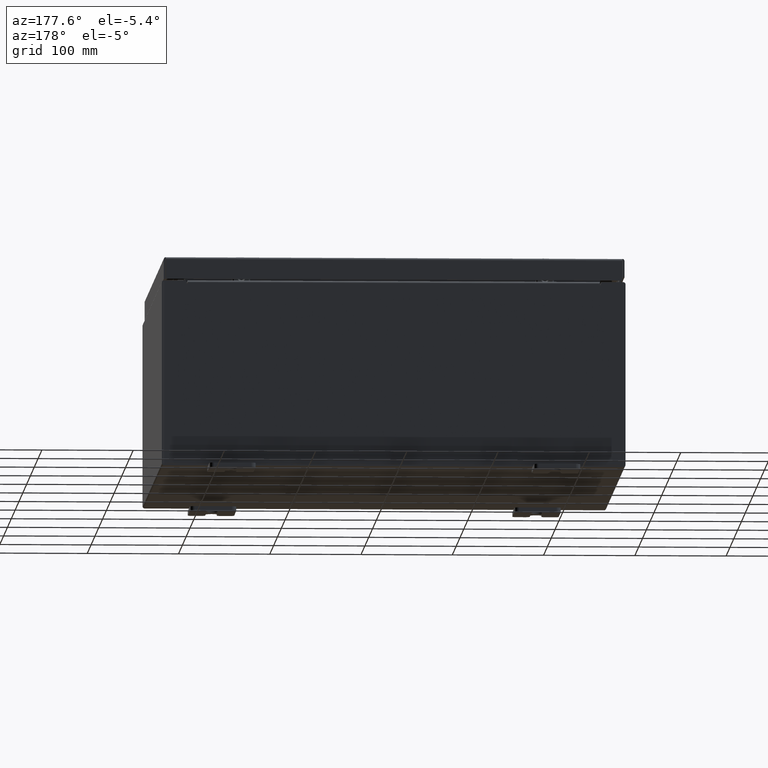
[diagram: clean part render]
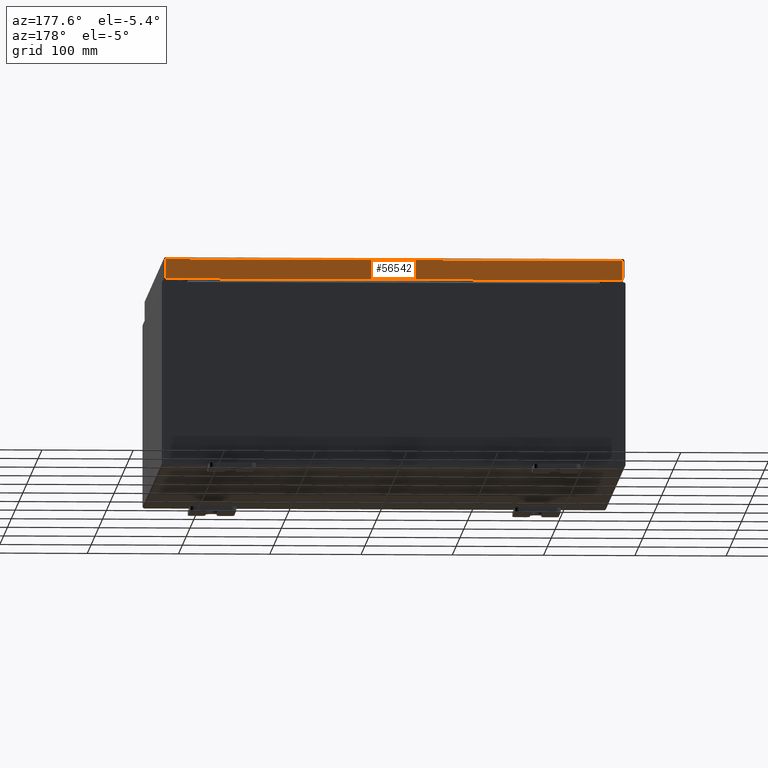
[diagram: same view with one face highlighted and labeled with its STEP entity id]
A machine part, auxiliary view. The second image highlights one B-rep face of the part: STEP entity #56542.
In plain terms, the highlighted planar face has unit normal (0, -1, -0).
Its self-contained STEP definition (entity closure, byte-faithful):
#910 = ORIENTED_EDGE ( 'NONE', *, *, #23583, .F. ) ;
#1100 = CARTESIAN_POINT ( 'NONE',  ( -9.937500000000000000, 9.937500000000000000, -0.9377000000000023100 ) ) ;
#1682 = ORIENTED_EDGE ( 'NONE', *, *, #14148, .F. ) ;
#3177 = ORIENTED_EDGE ( 'NONE', *, *, #43242, .T. ) ;
#3582 = DIRECTION ( 'NONE',  ( -1.000000000000000000, -3.132763603081809300E-031, -7.843572268217971900E-046 ) ) ;
#5168 = EDGE_CURVE ( 'NONE', #7670, #37022, #14948, .T. ) ;
#6096 = EDGE_LOOP ( 'NONE', ( #51207, #3177, #910, #1682 ) ) ;
#7670 = VERTEX_POINT ( 'NONE', #21086 ) ;
#8414 = CARTESIAN_POINT ( 'NONE',  ( 9.848657864376265900, 9.937500000000000000, -0.9376999999999997600 ) ) ;
#8521 = CARTESIAN_POINT ( 'NONE',  ( -9.937500000000000000, 9.937499999999998200, -0.08770000000000008300 ) ) ;
#11595 = DIRECTION ( 'NONE',  ( 1.000000000000000000, -4.379057701015054300E-047, 1.237063242414006500E-016 ) ) ;
#11624 = DIRECTION ( 'NONE',  ( 3.132763603081808900E-031, -1.000000000000000000, -2.532419924601859000E-015 ) ) ;
#14148 = EDGE_CURVE ( 'NONE', #37022, #37498, #55283, .T. ) ;
#14255 = CARTESIAN_POINT ( 'NONE',  ( -9.848657864376269400, 9.937499999999998200, -0.07469999999999980800 ) ) ;
#14948 = LINE ( 'NONE', #8521, #26449 ) ;
#15594 = CARTESIAN_POINT ( 'NONE',  ( -3.113183830562546900E-030, 9.937499999999998200, 2.542673665674255300E-014 ) ) ;
#16243 = FACE_OUTER_BOUND ( 'NONE', #6096, .T. ) ;
#17093 = CARTESIAN_POINT ( 'NONE',  ( -9.848657864376269400, 9.937500000000000000, -0.9377000000000023100 ) ) ;
#19253 = CARTESIAN_POINT ( 'NONE',  ( 9.848657864376265900, 9.937499999999998200, 2.542673665674255300E-014 ) ) ;
#19383 = DIRECTION ( 'NONE',  ( -0.0000000000000000000, 2.532419924601859000E-015, -1.000000000000000000 ) ) ;
#21086 = CARTESIAN_POINT ( 'NONE',  ( 9.848657864376265900, 9.937499999999998200, -0.08770000000000008300 ) ) ;
#23583 = EDGE_CURVE ( 'NONE', #37498, #63161, #41059, .T. ) ;
#25075 = VECTOR ( 'NONE', #48634, 39.37007874015748100 ) ;
#25441 = PLANE ( 'NONE',  #59265 ) ;
#26449 = VECTOR ( 'NONE', #3582, 39.37007874015748100 ) ;
#27700 = VECTOR ( 'NONE', #19383, 39.37007874015748100 ) ;
#33524 = LINE ( 'NONE', #19253, #25075 ) ;
#37022 = VERTEX_POINT ( 'NONE', #53573 ) ;
#37498 = VERTEX_POINT ( 'NONE', #17093 ) ;
#41059 = LINE ( 'NONE', #1100, #51013 ) ;
#43242 = EDGE_CURVE ( 'NONE', #7670, #63161, #33524, .T. ) ;
#45914 = DIRECTION ( 'NONE',  ( 0.0000000000000000000, 2.532419924601859000E-015, -1.000000000000000000 ) ) ;
#48634 = DIRECTION ( 'NONE',  ( 0.0000000000000000000, 2.532419924601859000E-015, -1.000000000000000000 ) ) ;
#51013 = VECTOR ( 'NONE', #11595, 39.37007874015748100 ) ;
#51207 = ORIENTED_EDGE ( 'NONE', *, *, #5168, .F. ) ;
#53573 = CARTESIAN_POINT ( 'NONE',  ( -9.848657864376265900, 9.937499999999998200, -0.08770000000000008300 ) ) ;
#55283 = LINE ( 'NONE', #14255, #27700 ) ;
#56542 = ADVANCED_FACE ( 'NONE', ( #16243 ), #25441, .F. ) ;
#59265 = AXIS2_PLACEMENT_3D ( 'NONE', #15594, #11624, #45914 ) ;
#63161 = VERTEX_POINT ( 'NONE', #8414 ) ;